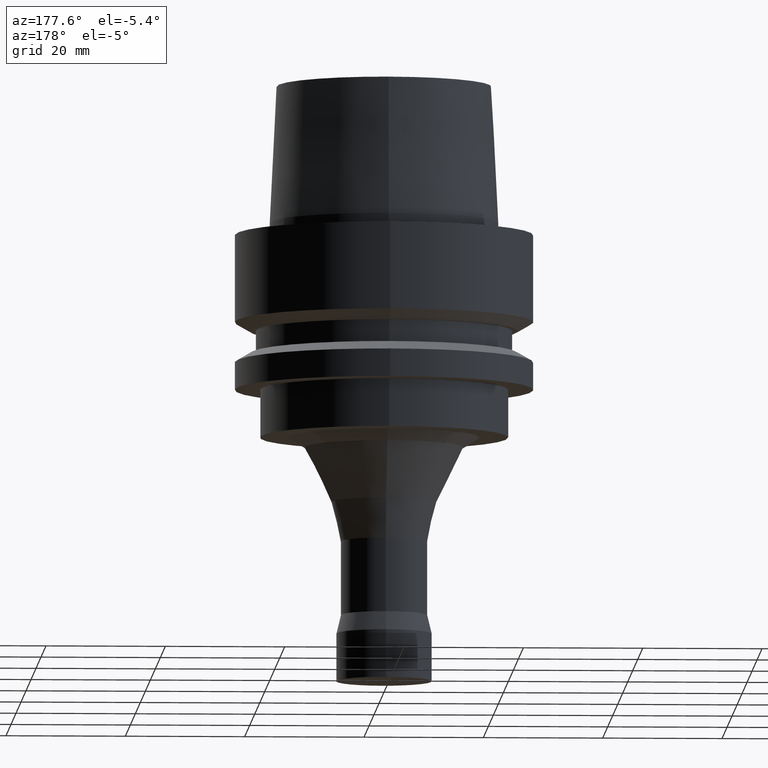
[diagram: clean part render]
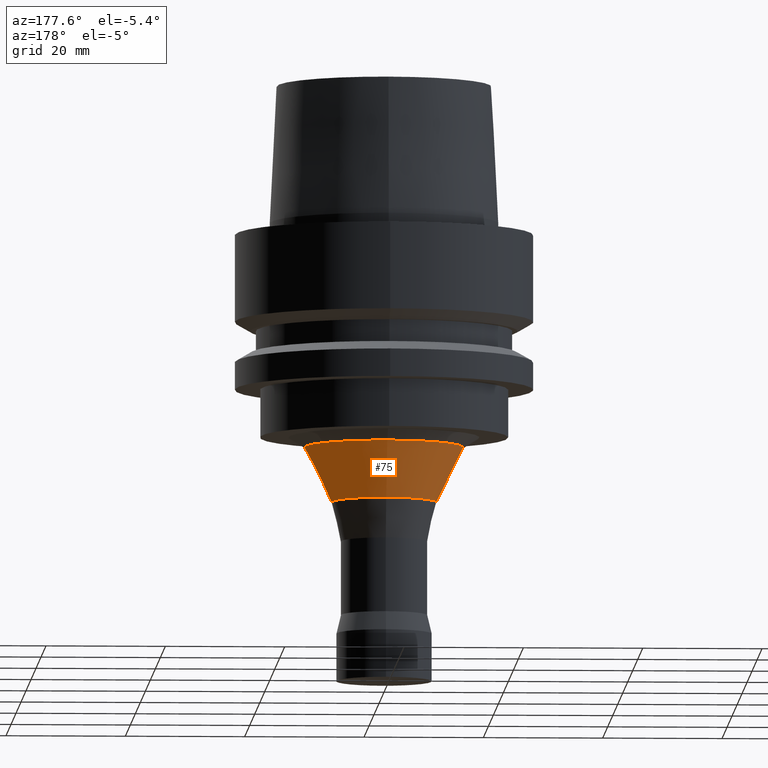
[diagram: same view with one face highlighted and labeled with its STEP entity id]
A machine part, auxiliary view. The second image highlights one B-rep face of the part: STEP entity #75.
In plain terms, the highlighted conical surface has half-angle 26.177 deg.
Its self-contained STEP definition (entity closure, byte-faithful):
#75=ADVANCED_FACE('',(#97,#98),#99,.T.);
#97=FACE_BOUND('',#158,.T.);
#98=FACE_BOUND('',#159,.T.);
#99=CONICAL_SURFACE('',#160,11.0480683567084,0.456871845099082);
#158=EDGE_LOOP('',(#219));
#159=EDGE_LOOP('',(#220));
#160=AXIS2_PLACEMENT_3D('',#221,#222,#223);
#219=ORIENTED_EDGE('',*,*,#322,.F.);
#220=ORIENTED_EDGE('',*,*,#323,.T.);
#221=CARTESIAN_POINT('',(2.46603571477535E-015,4.9320714295507E-015,-40.2734195115245));
#222=DIRECTION('',(-6.12323399573677E-017,-1.22464679914735E-016,1.0));
#223=DIRECTION('',(-1.23259516440783E-032,1.0,1.22464679914735E-016));
#322=EDGE_CURVE('',#342,#342,#343,.T.);
#323=EDGE_CURVE('',#344,#344,#345,.T.);
#342=VERTEX_POINT('',#382);
#343=CIRCLE('',#383,8.78844726);
#344=VERTEX_POINT('',#384);
#345=CIRCLE('',#385,13.3076894534169);
#382=CARTESIAN_POINT('',(2.74751149619399E-015,8.78844726000001,-44.87026787));
#383=AXIS2_PLACEMENT_3D('',#422,#423,#424);
#384=CARTESIAN_POINT('',(2.18455993335671E-015,13.3076894534169,-35.6765711530489));
#385=AXIS2_PLACEMENT_3D('',#425,#426,#427);
#422=CARTESIAN_POINT('',(2.74751149619399E-015,5.49502299238798E-015,-44.87026787));
#423=DIRECTION('',(6.12323399573677E-017,1.22464679914735E-016,-1.0));
#424=DIRECTION('',(-1.23259516440783E-032,1.0,1.22464679914735E-016));
#425=CARTESIAN_POINT('',(2.18455993335671E-015,4.36911986671341E-015,-35.6765711530489));
#426=DIRECTION('',(6.12323399573677E-017,1.22464679914735E-016,-1.0));
#427=DIRECTION('',(-1.23259516440783E-032,1.0,1.22464679914735E-016));